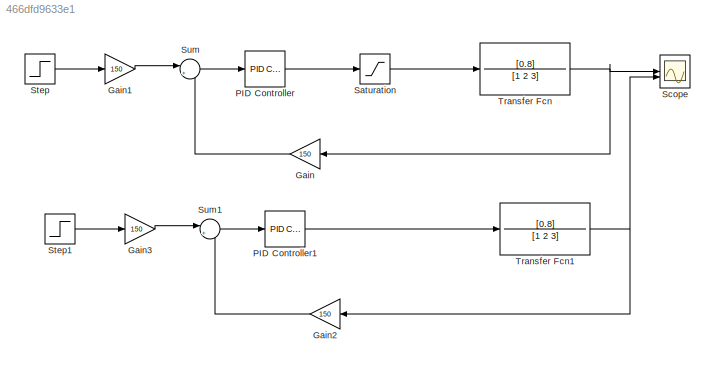
MODEL slx_466dfd9633e1
KIND model
CONFIG AbsTol = auto
CONFIG EnableMultiTasking = off
CONFIG FixedStep = auto
CONFIG MaxStep = auto
CONFIG MinStep = auto
CONFIG RelTol = 1e-3
CONFIG SampleTimeConstraint = Unconstrained
CONFIG SolverName = VariableStepAuto
CONFIG StartTime = 0.0
CONFIG StopTime = 10.0
BLOCK [Gain] Gain
  Gain = 150
BLOCK [Gain] Gain1
  Gain = 150
BLOCK [Gain] Gain2
  Commented = on
  Gain = 150
BLOCK [Gain] Gain3
  Commented = on
  Gain = 150
BLOCK [Reference] PID Controller  REF=slpidlib/PID Controller
  LibrarySourceBlock = simulink/Continuous/PID Controller
  SourceBlock = slpidlib/PID Controller
  SourceType = PID 1dof
BLOCK [Reference] PID Controller1  REF=slpidlib/PID Controller
  Commented = on
  LibrarySourceBlock = simulink/Continuous/PID Controller
  SourceBlock = slpidlib/PID Controller
  SourceType = PID 1dof
BLOCK [Saturate] Saturation
  LowerLimit = -20
  UpperLimit = 20
BLOCK [Scope] Scope
  Floating = off
  NumInputPorts = 2
  ScopeSpecificationString = Simulink.scopes.TimeScopeBlockCfg('CurrentConfiguration', extmgr.ConfigurationSet(extmgr.Configuration('Core','General UI',true),extmgr.Configuration('Core','Source UI',true),extmgr.Configuration('Sources','WiredSimulink',true),extmgr.Configuration('Visuals','Time Domain',true,'SerializedDisplays',{struct('MinYLimReal','-0.1407','MaxYLimReal','1.2663','YLabelReal','','MinYLimMag','0.00000','MaxYLi...<+2307ch>
BLOCK [Step] Step
  After = 0.87
  SampleTime = 0
  Time = 0
BLOCK [Step] Step1
  After = 0.87
  Commented = on
  SampleTime = 0
  Time = 0
BLOCK [Sum] Sum
  Inputs = |+-
BLOCK [Sum] Sum1
  Commented = on
  Inputs = |+-
BLOCK [TransferFcn] Transfer Fcn
  Denominator = [1 2 3]
  Numerator = [0.8]
BLOCK [TransferFcn] Transfer Fcn1
  Commented = on
  Denominator = [1 2 3]
  Numerator = [0.8]
LINE Gain1:1 -> Sum:1
LINE Gain2:1 -> Sum1:2
LINE Gain3:1 -> Sum1:1
LINE Gain:1 -> Sum:2
LINE PID Controller1:1 -> Transfer Fcn1:1
LINE PID Controller:1 -> Saturation:1
LINE Saturation:1 -> Transfer Fcn:1
LINE Step1:1 -> Gain3:1
LINE Step:1 -> Gain1:1
LINE Sum1:1 -> PID Controller1:1
LINE Sum:1 -> PID Controller:1
NET Transfer Fcn1:1 -> Gain2:1, Scope:2
NET Transfer Fcn:1 -> Gain:1, Scope:1
note: NET lines group one-source signal fan-out (src -> all destinations, sorted); 1:1 wires keep LINE
